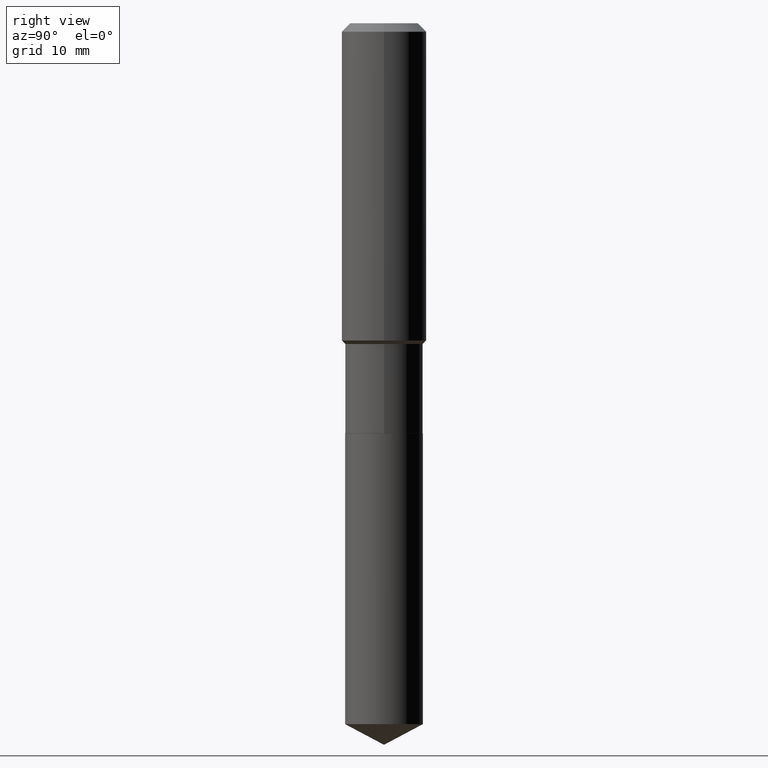
[diagram: clean part render]
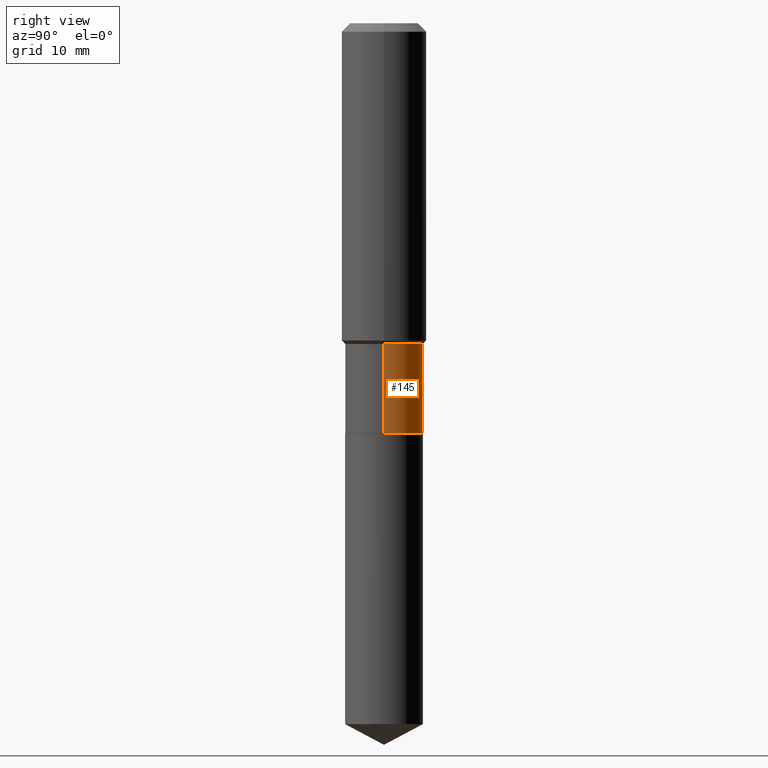
[diagram: same view with one face highlighted and labeled with its STEP entity id]
A machine part, right view. The second image highlights one B-rep face of the part: STEP entity #145.
In plain terms, the highlighted cylindrical surface (partial cylindrical patch) has radius 5.5004 mm, axis along (-0, 0, 1).
Its self-contained STEP definition (entity closure, byte-faithful):
#2 = AXIS2_PLACEMENT_3D ( 'NONE', #400, #213, #442 ) ;
#11 = LINE ( 'NONE', #312, #306 ) ;
#19 = CYLINDRICAL_SURFACE ( 'NONE', #485, 0.2165499999999999647 ) ;
#36 = VECTOR ( 'NONE', #89, 39.37007874015748143 ) ;
#48 = CARTESIAN_POINT ( 'NONE',  ( 0.000000000000000000, 0.000000000000000000, 0.000000000000000000 ) ) ;
#59 = ORIENTED_EDGE ( 'NONE', *, *, #192, .F. ) ;
#80 = CIRCLE ( 'NONE', #305, 0.2165499999999999370 ) ;
#84 = DIRECTION ( 'NONE',  ( 1.000000000000000000, -6.982962677686266711E-15, 4.876176775795936353E-29 ) ) ;
#86 = CARTESIAN_POINT ( 'NONE',  ( 0.2165499999999999370, -7.745502202089628379E-15, -1.785299999999999887 ) ) ;
#87 = DIRECTION ( 'NONE',  ( 1.000000000000000000, -6.982962677686266711E-15, 0.000000000000000000 ) ) ;
#89 = DIRECTION ( 'NONE',  ( -2.445468806185136877E-29, 3.491481338843145188E-15, 1.000000000000000000 ) ) ;
#90 = CARTESIAN_POINT ( 'NONE',  ( -0.2165499999999999370, -5.563341897052346134E-15, -1.785299999999999887 ) ) ;
#99 = ORIENTED_EDGE ( 'NONE', *, *, #351, .T. ) ;
#106 = ORIENTED_EDGE ( 'NONE', *, *, #232, .F. ) ;
#111 = CARTESIAN_POINT ( 'NONE',  ( 4.365895459682324685E-29, -6.233341634236667556E-15, -1.785299999999999887 ) ) ;
#114 = EDGE_CURVE ( 'NONE', #308, #278, #11, .T. ) ;
#133 = CIRCLE ( 'NONE', #2, 0.2165500000000000203 ) ;
#145 = ADVANCED_FACE ( 'NONE', ( #382 ), #19, .T. ) ;
#162 = CARTESIAN_POINT ( 'NONE',  ( -0.2165500000000000203, -5.563341897052346134E-15, -2.282900000000000151 ) ) ;
#169 = VERTEX_POINT ( 'NONE', #86 ) ;
#189 = LINE ( 'NONE', #340, #36 ) ;
#192 = EDGE_CURVE ( 'NONE', #228, #169, #189, .T. ) ;
#213 = DIRECTION ( 'NONE',  ( -2.445468806185136597E-29, 3.491481338843145583E-15, 1.000000000000000000 ) ) ;
#228 = VERTEX_POINT ( 'NONE', #419 ) ;
#232 = EDGE_CURVE ( 'NONE', #169, #278, #80, .T. ) ;
#269 = EDGE_LOOP ( 'NONE', ( #99, #283, #106, #59 ) ) ;
#278 = VERTEX_POINT ( 'NONE', #90 ) ;
#283 = ORIENTED_EDGE ( 'NONE', *, *, #114, .T. ) ;
#305 = AXIS2_PLACEMENT_3D ( 'NONE', #111, #310, #87 ) ;
#306 = VECTOR ( 'NONE', #344, 39.37007874015748143 ) ;
#308 = VERTEX_POINT ( 'NONE', #162 ) ;
#310 = DIRECTION ( 'NONE',  ( -2.445468806185136597E-29, 3.491481338843145583E-15, 1.000000000000000000 ) ) ;
#312 = CARTESIAN_POINT ( 'NONE',  ( -0.2165499999999999647, 1.538680294288496702E-15, -1.065195393794699783E-29 ) ) ;
#340 = CARTESIAN_POINT ( 'NONE',  ( 0.2165499999999999647, -1.512160567852960823E-15, 1.055936080798609895E-29 ) ) ;
#344 = DIRECTION ( 'NONE',  ( -2.445468806185136877E-29, 3.491481338843145188E-15, 1.000000000000000000 ) ) ;
#350 = DIRECTION ( 'NONE',  ( -2.445468806185136597E-29, 3.491481338843145583E-15, 1.000000000000000000 ) ) ;
#351 = EDGE_CURVE ( 'NONE', #228, #308, #133, .T. ) ;
#382 = FACE_OUTER_BOUND ( 'NONE', #269, .T. ) ;
#400 = CARTESIAN_POINT ( 'NONE',  ( 5.582760737640048882E-29, -7.970702748445017327E-15, -2.282900000000000151 ) ) ;
#419 = CARTESIAN_POINT ( 'NONE',  ( 0.2165500000000000203, -9.482863316297978150E-15, -2.282900000000000151 ) ) ;
#442 = DIRECTION ( 'NONE',  ( 1.000000000000000000, -6.982962677686264344E-15, 0.000000000000000000 ) ) ;
#485 = AXIS2_PLACEMENT_3D ( 'NONE', #48, #350, #84 ) ;